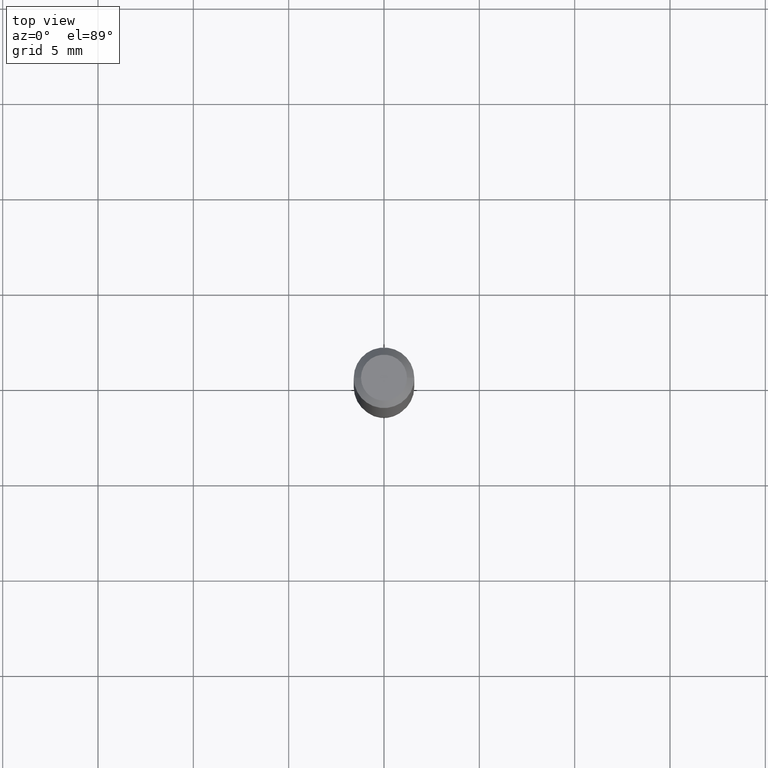
[diagram: clean part render]
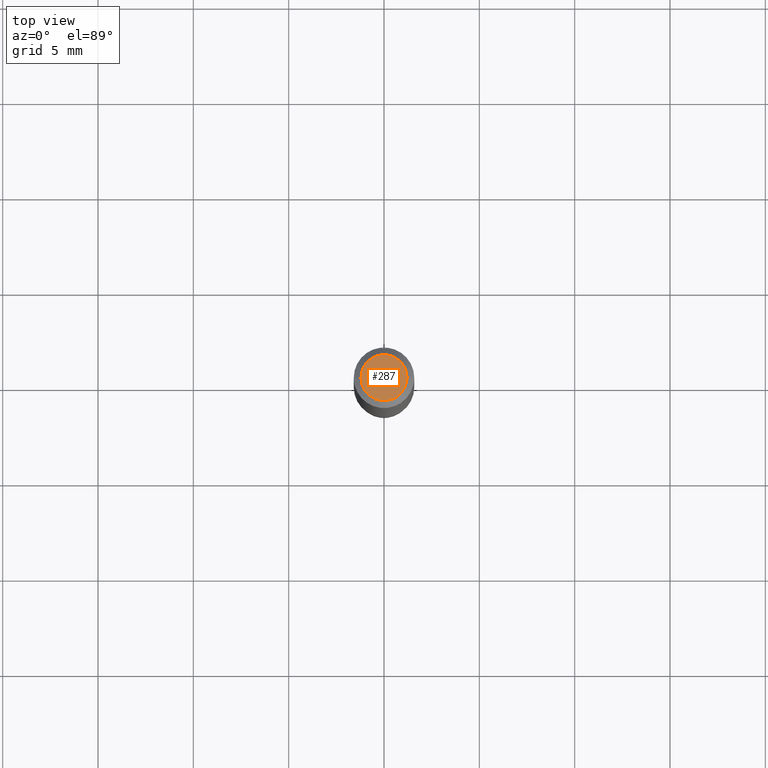
[diagram: same view with one face highlighted and labeled with its STEP entity id]
A machine part, top view. The second image highlights one B-rep face of the part: STEP entity #287.
In plain terms, the highlighted planar face has unit normal (0, -0, -1).
Its self-contained STEP definition (entity closure, byte-faithful):
#25 = DIRECTION ( 'NONE',  ( 2.438088387897960049E-29, -3.491481338843145188E-15, -1.000000000000000000 ) ) ;
#60 = EDGE_CURVE ( 'NONE', #292, #391, #347, .T. ) ;
#78 = DIRECTION ( 'NONE',  ( -2.445468806185136597E-29, 3.491481338843145583E-15, 1.000000000000000000 ) ) ;
#109 = AXIS2_PLACEMENT_3D ( 'NONE', #279, #78, #450 ) ;
#117 = CARTESIAN_POINT ( 'NONE',  ( 3.316907271900976589E-16, 0.04750000000000000749, -2.925296391183627249E-17 ) ) ;
#123 = CARTESIAN_POINT ( 'NONE',  ( -0.04750000000000000749, 3.578768372314221353E-16, 2.731847993664239060E-16 ) ) ;
#141 = DIRECTION ( 'NONE',  ( 1.000000000000000000, -6.982962677686266711E-15, 4.852736867747365086E-29 ) ) ;
#142 = ORIENTED_EDGE ( 'NONE', *, *, #366, .T. ) ;
#189 = FACE_OUTER_BOUND ( 'NONE', #362, .T. ) ;
#212 = AXIS2_PLACEMENT_3D ( 'NONE', #277, #492, #141 ) ;
#277 = CARTESIAN_POINT ( 'NONE',  ( -6.680649051745406845E-45, 9.538196290434862081E-31, 2.731847993664263218E-16 ) ) ;
#279 = CARTESIAN_POINT ( 'NONE',  ( -6.680649051745406845E-45, 9.538196290434862081E-31, 2.731847993664263218E-16 ) ) ;
#285 = ORIENTED_EDGE ( 'NONE', *, *, #60, .T. ) ;
#287 = ADVANCED_FACE ( 'NONE', ( #189 ), #314, .F. ) ;
#292 = VERTEX_POINT ( 'NONE', #123 ) ;
#314 = PLANE ( 'NONE',  #389 ) ;
#339 = CIRCLE ( 'NONE', #109, 0.04750000000000000749 ) ;
#347 = CIRCLE ( 'NONE', #212, 0.04750000000000000749 ) ;
#362 = EDGE_LOOP ( 'NONE', ( #285, #142 ) ) ;
#366 = EDGE_CURVE ( 'NONE', #391, #292, #339, .T. ) ;
#389 = AXIS2_PLACEMENT_3D ( 'NONE', #117, #25, #397 ) ;
#391 = VERTEX_POINT ( 'NONE', #446 ) ;
#397 = DIRECTION ( 'NONE',  ( -1.000000000000000000, 6.982962677686265922E-15, -4.876176775795935793E-29 ) ) ;
#446 = CARTESIAN_POINT ( 'NONE',  ( 0.04750000000000000749, -4.035134999187568762E-16, 2.731847993664288856E-16 ) ) ;
#450 = DIRECTION ( 'NONE',  ( 1.000000000000000000, -6.982962677686266711E-15, 4.852736867747365086E-29 ) ) ;
#492 = DIRECTION ( 'NONE',  ( -2.445468806185136597E-29, 3.491481338843145583E-15, 1.000000000000000000 ) ) ;